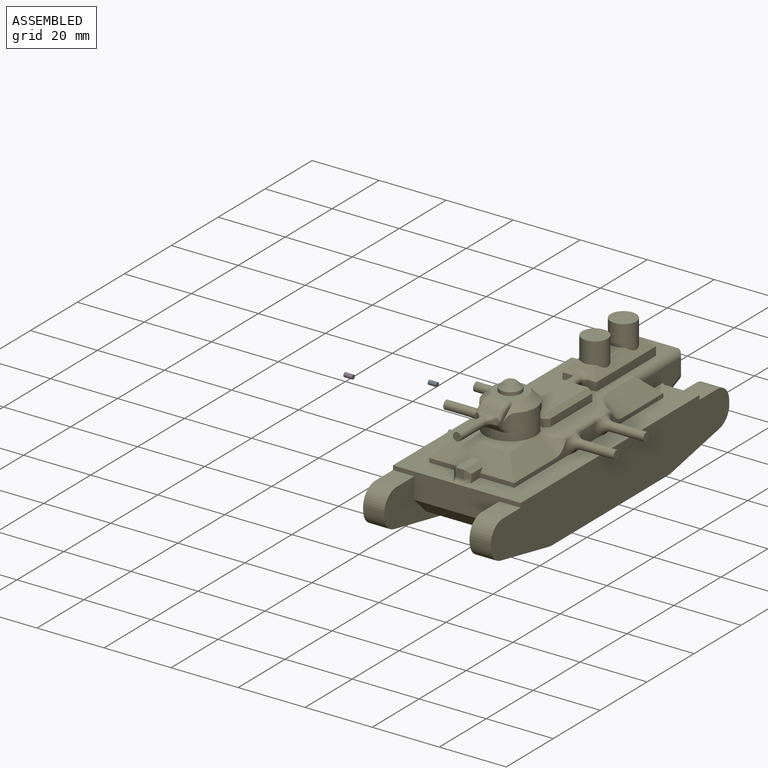
[diagram: assembled view]
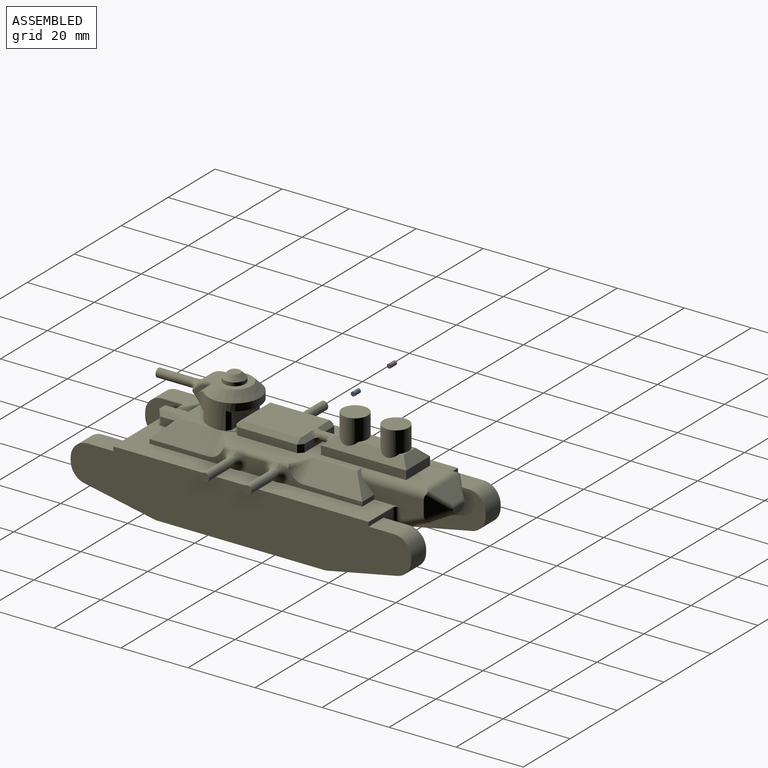
[diagram: assembled view, second angle]
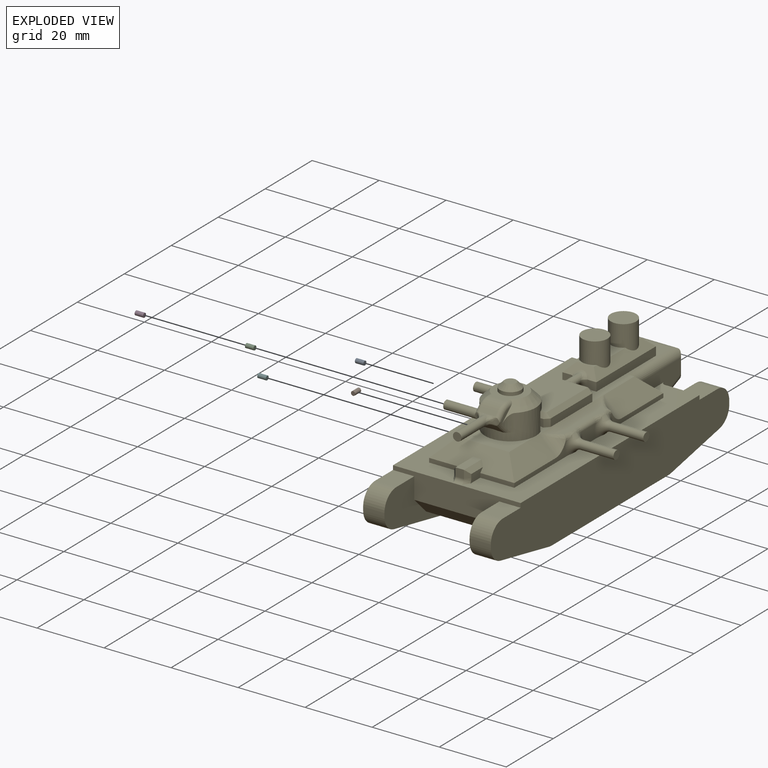
[diagram: exploded view]
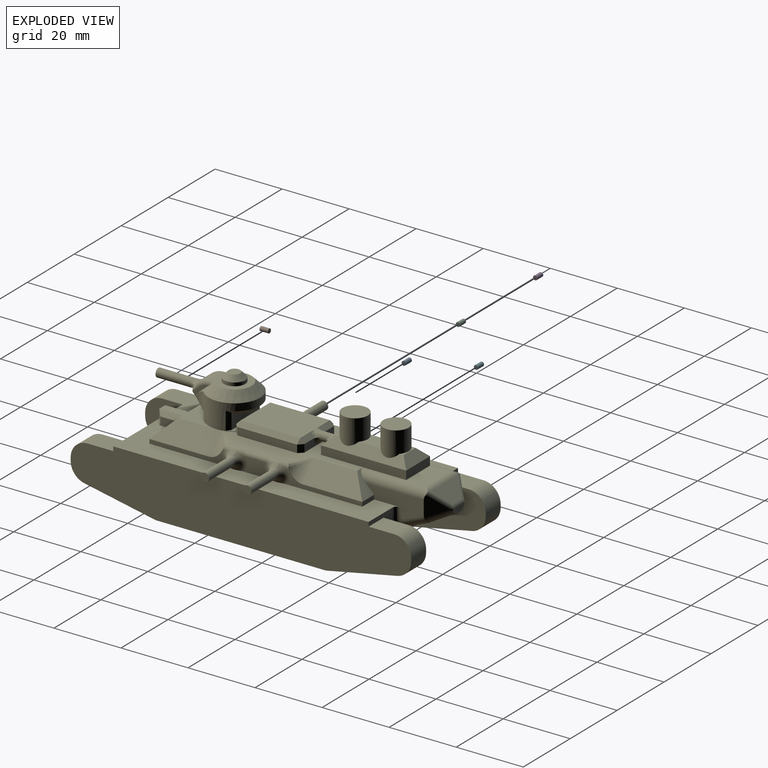
[diagram: exploded view, second angle]
ASSEMBLY  parts=6 mates=2
PART A: 3 faces, bbox 1.3x2.5x1.3 mm
  f0: cylinder r=0.64mm len=2.54mm, axis (0,1,0), area 10.1mm2, adj f1,f2
  f1: plane 1.27x1.27mm, normal (0,-1,0), area 1.3mm2, adj f0
  f2: plane 1.27x1.27mm, normal (0,1,0), area 1.3mm2, adj f0
PART B: same geometry as A
PART C: same geometry as A
PART D: same geometry as A
PART E: 224 faces, bbox 53.3x105.8x38.1 mm
  f0: bspline ~6.87x1.72mm, area 9.1mm2, adj f1,f5,f6,f152,f153,f167,f168
  f1: cylinder r=1.27mm len=5.83mm, axis (0,-1,0), area 11.6mm2, adj f0,f4,f17,f152
  f2: cylinder r=1.27mm len=5.83mm, axis (0,1,0), area 11.6mm2, adj f3,f7,f16,f151
  f3: bspline ~6.87x1.72mm, area 9.1mm2, adj f2,f151,f158,f173,f174,f206,f207
  f4: bspline ~6.87x1.72mm, area 9.1mm2, adj f1,f152,f155,f171,f172,f212,f213
  f5: bspline ~3.63x2.72mm, area 2mm2, adj f0,f152,f153,f214
  f6: cylinder r=1.27mm len=0.21mm, axis (0,-1,0), area 0mm2, adj f0,f74,f153
  f7: bspline ~6.88x1.72mm, area 9.1mm2, adj f2,f151,f156,f169,f170,f209,f210
  f8: plane 5.24x2.29mm, normal (0,1,0), area 9.6mm2, adj f10,f13,f196,f200
  f9: plane 3.97x2.54mm, normal (0,-1,0), area 7.4mm2, adj f13,f91,f97,f204
  f10: plane 5.03x1.29mm, normal (0,0.71,0.71), area 7.9mm2, adj f8,f184,f195,f200,f201
  f11: cylinder r=7.62mm len=15.24mm, axis (0,0,-1), area 202.1mm2, adj f12,f14,f30,f31,f32,f33,f112,f113
  f12: plane 6.4x2.01mm, normal (0,0,1), area 3.7mm2, adj f11,f20,f154,f180,f190,f211
  f13: plane 18.1x15.42mm, normal (0,0,1), area 127.6mm2, adj f8,f9,f21,f22,f39,f80,f89,f90
  f14: plane 14.44x2.52mm, normal (0,0,1), area 21.8mm2, adj f11,f175,f177,f179,f180
  f15: plane 22.56x4.18mm, normal (1,0,0), area 31.2mm2, adj f22,f23,f38,f156,f169,f210
  f16: plane 7.02x4.18mm, normal (1,0,0), area 23.2mm2, adj f2,f23,f169,f173
  f17: plane 7.02x4.18mm, normal (-1,0,0), area 23.2mm2, adj f1,f37,f167,f171
  f18: plane 22.56x4.18mm, normal (-1,0,0), area 31.2mm2, adj f20,f24,f37,f155,f171,f213
  f19: plane 17.82x5.12mm, normal (0.71,0,0.71), area 109.5mm2, adj f32,f33,f76,f79,f158,f205
  f20: plane 17.82x5.12mm, normal (-0.71,0,0.71), area 109.5mm2, adj f12,f18,f33,f79,f155,f211
  f21: plane 17.82x5.12mm, normal (-0.71,0,0.71), area 109.5mm2, adj f13,f74,f80,f153,f214
  f22: plane 17.82x5.12mm, normal (0.71,0,0.71), area 109.5mm2, adj f13,f15,f39,f156,f208
  f23: plane 78.42x18.73mm, normal (0,0,1), area 580.8mm2, adj f15,f16,f36,f38,f41,f43,f75,f76
  f24: plane 10.16x1.27mm, normal (0,-1,0), area 12.9mm2, adj f18,f37,f79,f142
  f25: bspline ~2.22x1.77mm, area 0.7mm2, adj f114,f115,f126
  f26: bspline ~2.22x1.77mm, area 0.7mm2, adj f113,f115,f130
  f27: bspline ~2.22x1.77mm, area 0.7mm2, adj f113,f115,f121
  f28: bspline ~2.22x1.77mm, area 0.7mm2, adj f114,f115,f125
  f29: cone r=0.64mm half-angle=45deg, axis (0,0,-1), area 31.9mm2, adj f119,f120
  f30: plane 3.7x1.97mm, normal (0,0,-1), area 1.1mm2, adj f11,f113,f118,f136
  f31: cone r=5.08mm half-angle=45deg, axis (0,0,-1), area 118mm2, adj f11,f109,f110,f111,f117,f118,f132,f133
  f32: plane 6.4x2.01mm, normal (0,0,1), area 3.7mm2, adj f11,f19,f157,f180,f185,f205
  f33: plane 15.24x11.43mm, normal (0,0,1), area 83mm2, adj f11,f19,f20,f79
  f34: plane 5.08x1.22mm, normal (0,0,1), area 2.8mm2, adj f95,f96,f97,f100
  f35: plane 6.51x5.08mm, normal (0,0,1), area 26.3mm2, adj f95,f96,f98,f100
  f36: plane 38.1x7.62mm, normal (0,1,0), area 98.8mm2, adj f23,f37,f42,f43,f45,f46,f53,f55
  f37: plane 78.42x18.73mm, normal (0,0,1), area 580.8mm2, adj f17,f18,f24,f36,f41,f42,f74,f77
  f38: plane 5.08x1.27mm, normal (0,1,0), area 6.5mm2, adj f15,f23,f39,f81
  f39: plane 7.62x5.08mm, normal (0,0.71,0.71), area 20.2mm2, adj f13,f22,f38,f81,f106
  f40: plane 66.04x25.4mm, normal (0,0,-1), area 1677.4mm2, adj f45,f53,f72,f73
  f41: plane 38.1x7.62mm, normal (0,-1,0), area 209.7mm2, adj f23,f37,f42,f43,f44,f45,f52,f53
  f42: plane 101.6x16.51mm, normal (-1,0,0), area 1498.2mm2, adj f36,f37,f41,f52,f54,f55,f56,f57
  f43: plane 101.6x16.51mm, normal (1,0,0), area 1498.2mm2, adj f23,f36,f41,f44,f46,f47,f48,f49
  f44: plane 7.62x6.35mm, normal (0,0,1), area 48.4mm2, adj f41,f43,f45,f64
  f45: plane 101.6x15.24mm, normal (-1,0,0), area 556.2mm2, adj f36,f40,f41,f44,f46,f47,f48,f49
  f46: plane 7.62x6.35mm, normal (0,0,1), area 48.4mm2, adj f36,f43,f45,f67
  f47: plane 6.35x0.92mm, normal (0,-1,0), area 5.8mm2, adj f43,f45,f64,f65
  f48: plane 20.82x6.35mm, normal (0,-0.2,-0.98), area 134.8mm2, adj f43,f45,f65,f70
  f49: plane 49.79x6.35mm, normal (0,0,-1), area 316.2mm2, adj f43,f45,f70,f71
  f50: plane 20.82x6.35mm, normal (0,0.2,-0.98), area 134.8mm2, adj f43,f45,f66,f71
  f51: plane 6.35x0.92mm, normal (0,1,0), area 5.8mm2, adj f43,f45,f66,f67
  f52: plane 7.62x6.35mm, normal (0,0,1), area 48.4mm2, adj f41,f42,f53,f63
  f53: plane 101.6x15.24mm, normal (1,0,0), area 556.2mm2, adj f36,f40,f41,f52,f54,f55,f56,f57
  f54: plane 6.35x0.91mm, normal (0,-1,0), area 5.8mm2, adj f42,f53,f62,f63
  f55: plane 7.62x6.35mm, normal (0,0,1), area 48.4mm2, adj f36,f42,f53,f60
  f56: plane 6.35x0.92mm, normal (0,1,0), area 5.9mm2, adj f42,f53,f60,f61
  f57: plane 20.61x6.35mm, normal (0,0.2,-0.98), area 133.5mm2, adj f42,f53,f61,f68
  f58: plane 49.79x6.35mm, normal (0,0,-1), area 316.2mm2, adj f42,f53,f68,f69
  f59: plane 21.04x6.35mm, normal (0,-0.19,-0.98), area 136.2mm2, adj f42,f53,f62,f69
  f60: cylinder r=5.08mm len=6.35mm, axis (-1,0,0), area 50.7mm2, adj f42,f53,f55,f56
  f61: cylinder r=5.08mm len=6.35mm, axis (-1,0,0), area 44.2mm2, adj f42,f53,f56,f57
  f62: cylinder r=5.08mm len=6.35mm, axis (-1,0,0), area 44.4mm2, adj f42,f53,f54,f59
  f63: cylinder r=5.08mm len=6.35mm, axis (-1,0,0), area 50.7mm2, adj f42,f52,f53,f54
  f64: cylinder r=5.08mm len=6.35mm, axis (1,0,0), area 50.7mm2, adj f43,f44,f45,f47
  f65: cylinder r=5.08mm len=6.35mm, axis (1,0,0), area 44.3mm2, adj f43,f45,f47,f48
  f66: cylinder r=5.08mm len=6.35mm, axis (-1,0,0), area 44.3mm2, adj f43,f45,f50,f51
  f67: cylinder r=5.08mm len=6.35mm, axis (1,0,0), area 50.7mm2, adj f43,f45,f46,f51
  f68: cylinder r=5.08mm len=6.35mm, axis (-1,0,0), area 6.4mm2, adj f42,f53,f57,f58
  f69: cylinder r=5.08mm len=6.35mm, axis (-1,0,0), area 6.3mm2, adj f42,f53,f58,f59
  f70: cylinder r=5.08mm len=6.35mm, axis (1,0,0), area 6.4mm2, adj f43,f45,f48,f49
  f71: cylinder r=5.08mm len=6.35mm, axis (-1,0,0), area 6.4mm2, adj f43,f45,f49,f50
  f72: plane 25.4x5.08mm, normal (0,-0.71,-0.71), area 182.5mm2, adj f40,f41,f45,f53
  f73: plane 25.4x5.08mm, normal (0,0.71,-0.71), area 182.5mm2, adj f36,f40,f45,f53
  f74: plane 22.56x4.18mm, normal (-1,0,0), area 31.2mm2, adj f6,f21,f37,f77,f153,f167
  f75: plane 10.16x1.27mm, normal (0,-1,0), area 12.9mm2, adj f23,f76,f79,f140
  f76: plane 22.56x4.18mm, normal (1,0,0), area 31.2mm2, adj f19,f23,f75,f158,f173,f206
  f77: plane 5.08x1.27mm, normal (0,1,0), area 6.5mm2, adj f37,f74,f80,f83
  f78: plane 10.16x5.99mm, normal (0,0,1), area 60.9mm2, adj f92,f106,f107,f108
  f79: plane 25.4x5.08mm, normal (0,-0.71,0.71), area 130.8mm2, adj f19,f20,f24,f33,f75,f140,f141,f142
  f80: plane 7.62x5.08mm, normal (0,0.71,0.71), area 20.2mm2, adj f13,f21,f77,f83,f107
  f81: plane 17.35x7.23mm, normal (1,0,0), area 73.5mm2, adj f23,f38,f39,f85,f102,f106,f216
  f82: plane 4.9x1.83mm, normal (0,1,0), area 7.2mm2, adj f103,f104,f220,f221,f222
  f83: plane 17.35x7.23mm, normal (-1,0,0), area 73.5mm2, adj f37,f77,f80,f87,f105,f107,f218
  f84: plane 15.92x1.23mm, normal (0,0,-1), area 10.5mm2, adj f36,f88,f102,f105,f215,f217
  f85: plane 6.42x4.87mm, normal (0.71,0.71,0), area 21.7mm2, adj f81,f102,f103,f106,f223
  f86: plane 11.96x3.96mm, normal (0,0.71,0.71), area 44.8mm2, adj f108,f219,f220,f221,f222,f223
  f87: plane 6.42x4.87mm, normal (-0.71,0.71,0), area 21.7mm2, adj f83,f104,f105,f107,f219
  f88: plane 12.62x10.16mm, normal (0,0.38,-0.92), area 110.8mm2, adj f84,f102,f103,f104,f105
  f89: plane 25.4x2.54mm, normal (-1,0,0), area 64.5mm2, adj f13,f90,f92,f95,f107
  f90: plane 3.97x2.54mm, normal (0,-1,0), area 7.4mm2, adj f13,f89,f97,f204
  f91: plane 25.4x2.54mm, normal (1,0,0), area 64.5mm2, adj f9,f13,f92,f96,f106
  f92: plane 10.16x2.54mm, normal (0,1,0), area 25.8mm2, adj f78,f89,f91,f94
  f93: plane 5.08x1.22mm, normal (0,0,1), area 2.8mm2, adj f94,f95,f96,f98
  f94: plane 10.16x2.54mm, normal (0,0.71,0.71), area 27.4mm2, adj f92,f93,f95,f96
  f95: plane 27.94x5.08mm, normal (-0.71,0,0.71), area 68mm2, adj f34,f35,f89,f93,f94,f97,f98,f100
  f96: plane 27.94x5.08mm, normal (0.71,0,0.71), area 68mm2, adj f34,f35,f91,f93,f94,f97,f98,f100
  f97: plane 10.16x2.57mm, normal (0,-0.71,0.71), area 21mm2, adj f9,f34,f90,f95,f96,f203,f204
  f98: cylinder r=3.81mm len=7.62mm, axis (0,0,-1), area 152mm2, adj f35,f93,f95,f96,f99
  f99: plane 7.62x7.62mm, normal (0,0,1), area 45.6mm2, adj f98
  f100: cylinder r=3.81mm len=7.62mm, axis (0,0,-1), area 152mm2, adj f34,f35,f95,f96,f101
  f101: plane 7.62x7.62mm, normal (0,0,1), area 45.6mm2, adj f100
  f102: cylinder r=2.54mm len=9.61mm, axis (0,0.92,0.38), area 32.8mm2, adj f81,f84,f85,f88,f103,f215
  f103: cylinder r=2.54mm len=7.57mm, axis (-0.68,0.68,0.28), area 23.5mm2, adj f82,f85,f88,f102,f104,f222
  f104: cylinder r=2.54mm len=7.57mm, axis (0.68,0.68,0.28), area 23.5mm2, adj f82,f87,f88,f103,f105,f220
  f105: cylinder r=2.54mm len=9.61mm, axis (0,0.92,0.38), area 32.8mm2, adj f83,f84,f87,f88,f104,f217
  f106: cylinder r=2.54mm len=20.34mm, axis (0,1,0), area 75.8mm2, adj f39,f78,f81,f85,f91,f108,f223
  f107: cylinder r=2.54mm len=20.34mm, axis (0,-1,0), area 75.8mm2, adj f78,f80,f83,f87,f89,f108,f219
  f108: cylinder r=2.54mm len=13.17mm, axis (-1,0,0), area 23.6mm2, adj f78,f86,f106,f107,f219,f223
  f109: plane 10.43x10.16mm, normal (0,0,1), area 51.7mm2, adj f31,f119,f131,f132,f139
  f110: plane 4.48x3.35mm, normal (-1,0,0), area 4.2mm2, adj f31,f132,f133,f134,f135
  f111: plane 4.48x3.35mm, normal (1,0,0), area 4.2mm2, adj f31,f136,f137,f138,f139
  f112: plane 3.7x1.97mm, normal (0,0,-1), area 1.1mm2, adj f11,f113,f117,f133
  f113: plane 6.57x3.07mm, normal (0,-0.71,-0.71), area 18.5mm2, adj f11,f26,f27,f30,f112,f121,f130,f133
  f114: plane 5.47x1.59mm, normal (0,-0.71,0.71), area 7.3mm2, adj f25,f28,f125,f126,f131,f135,f137
  f115: cylinder r=1.27mm len=12.7mm, axis (0,1,0), area 87.1mm2, adj f25,f26,f27,f28,f116,f121,f122,f123
  f116: plane 2.54x2.54mm, normal (0,-1,0), area 5.1mm2, adj f115
  f117: cylinder r=5.08mm len=5.08mm, axis (0,0,-1), area 11.3mm2, adj f11,f31,f112,f133
  f118: cylinder r=5.08mm len=5.08mm, axis (0,0,-1), area 11.3mm2, adj f11,f30,f31,f136
  f119: cylinder r=3.17mm len=6.35mm, axis (0,0,-1), area 20.3mm2, adj f29,f109
  f120: plane 3.4x3.4mm, normal (0,0,1), area 9.1mm2, adj f29
  f121: bspline ~3.03x2.54mm, area 2.5mm2, adj f27,f113,f115,f122,f133
  f122: torus R=3.81mm, axis (0,1,0), area 1mm2, adj f115,f121,f123,f133
  f123: bspline ~2.69x2.54mm, area 3.1mm2, adj f115,f122,f124,f133,f135
  f124: torus R=3.81mm, axis (0,1,0), area 1mm2, adj f115,f123,f125,f135
  f125: bspline ~3.03x2.54mm, area 2.5mm2, adj f28,f114,f115,f124,f135
  f126: bspline ~3.03x2.54mm, area 2.5mm2, adj f25,f114,f115,f127,f137
  f127: torus R=3.81mm, axis (0,1,0), area 1mm2, adj f115,f126,f128,f137
  f128: bspline ~2.69x2.54mm, area 3.1mm2, adj f115,f127,f129,f136,f137
  f129: torus R=3.81mm, axis (0,1,0), area 1mm2, adj f115,f128,f130,f136
  f130: bspline ~3.03x2.54mm, area 2.5mm2, adj f26,f113,f115,f129,f136
  f131: cylinder r=5.08mm len=4.94mm, axis (1,0,0), area 19.7mm2, adj f109,f114,f134,f138
  f132: cylinder r=1.27mm len=1.27mm, axis (0,-1,0), area 1.8mm2, adj f31,f109,f110,f134
  f133: bspline ~5x4.3mm, area 7.8mm2, adj f31,f110,f112,f113,f117,f121,f122,f123
  f134: torus R=3.81mm, axis (1,0,0), area 7.2mm2, adj f110,f131,f132,f135
  f135: cylinder r=1.27mm len=2.62mm, axis (0,-0.71,-0.71), area 3.9mm2, adj f110,f114,f123,f124,f125,f133,f134
  f136: bspline ~5x4.3mm, area 7.8mm2, adj f30,f31,f111,f113,f118,f128,f129,f130
  f137: cylinder r=1.27mm len=2.62mm, axis (0,-0.71,-0.71), area 3.9mm2, adj f111,f114,f126,f127,f128,f136,f138
  f138: torus R=3.81mm, axis (1,0,0), area 7.2mm2, adj f111,f131,f137,f139
  f139: cylinder r=1.27mm len=1.27mm, axis (0,1,0), area 1.8mm2, adj f31,f109,f111,f138
  f140: plane 5.31x2.43mm, normal (1,0,0), area 10.1mm2, adj f23,f75,f79,f145,f146,f147
  f141: plane 7.51x2.54mm, normal (0,0,1), area 19.1mm2, adj f79,f143,f145,f148
  f142: plane 5.31x2.43mm, normal (-1,0,0), area 10.1mm2, adj f24,f37,f79,f148,f149,f150
  f143: plane 2.54x2.43mm, normal (0,-1,0), area 6.2mm2, adj f141,f144,f146,f149
  f144: cylinder r=1.27mm len=2.54mm, axis (-1,0,0), area 5.1mm2, adj f41,f143,f147,f150
  f145: plane 7.51x1.27mm, normal (0.71,0,0.71), area 11.2mm2, adj f79,f140,f141,f146
  f146: plane 2.43x1.27mm, normal (0.71,-0.71,0), area 3.2mm2, adj f140,f143,f145,f147
  f147: cone r=2.54mm half-angle=45deg, axis (1,0,0), area 3.4mm2, adj f23,f140,f144,f146
  f148: plane 7.51x1.27mm, normal (-0.71,0,0.71), area 11.2mm2, adj f79,f141,f142,f149
  f149: plane 2.43x1.27mm, normal (-0.71,-0.71,0), area 3.2mm2, adj f142,f143,f148,f150
  f150: cone r=2.54mm half-angle=45deg, axis (-1,0,0), area 3.4mm2, adj f37,f142,f144,f149
  f151: plane 19.13x1.61mm, normal (0,0,1), area 21.4mm2, adj f2,f3,f7,f157,f207,f209
  f152: plane 19.13x1.61mm, normal (0,0,1), area 21.4mm2, adj f0,f1,f4,f5,f154,f212
  f153: cylinder r=5.08mm len=6.65mm, axis (0.71,0,0.71), area 20.9mm2, adj f0,f5,f6,f21,f74,f214
  f154: cylinder r=5.08mm len=26.91mm, axis (0,1,0), area 70.5mm2, adj f12,f13,f152,f183,f211,f214
  f155: cylinder r=5.08mm len=6.65mm, axis (-0.71,0,-0.71), area 20.9mm2, adj f4,f18,f20,f211,f212,f213
  f156: cylinder r=5.08mm len=6.65mm, axis (-0.71,0,0.71), area 20.9mm2, adj f7,f15,f22,f208,f209,f210
  f157: cylinder r=5.08mm len=26.91mm, axis (0,1,0), area 70.5mm2, adj f13,f32,f151,f181,f205,f208
  f158: cylinder r=5.08mm len=6.65mm, axis (0.71,0,-0.71), area 20.9mm2, adj f3,f19,f76,f205,f206,f207
  f159: plane 2.54x2.54mm, normal (1,0,0), area 5.1mm2, adj f160
  f160: cylinder r=1.27mm len=10.16mm, axis (-1,0,0), area 81.1mm2, adj f159,f173,f174
  f161: cylinder r=1.27mm len=10.16mm, axis (-1,0,0), area 81.1mm2, adj f162,f171,f172
  f162: plane 2.54x2.54mm, normal (-1,0,0), area 5.1mm2, adj f161
  f163: plane 2.54x2.54mm, normal (1,0,0), area 5.1mm2, adj f164
  f164: cylinder r=1.27mm len=10.16mm, axis (-1,0,0), area 81.1mm2, adj f163,f169,f170
  f165: cylinder r=1.27mm len=10.16mm, axis (-1,0,0), area 81.1mm2, adj f166,f167,f168
  f166: plane 2.54x2.54mm, normal (-1,0,0), area 5.1mm2, adj f165
  f167: torus R=3.81mm, axis (1,0,0), area 35.9mm2, adj f0,f17,f37,f74,f165,f168
  f168: bspline ~5.57x2.79mm, area 5.5mm2, adj f0,f165,f167
  f169: torus R=3.81mm, axis (1,0,0), area 35.9mm2, adj f7,f15,f16,f23,f164,f170
  f170: bspline ~5.57x2.79mm, area 5.5mm2, adj f7,f164,f169
  f171: torus R=3.81mm, axis (1,0,0), area 35.9mm2, adj f4,f17,f18,f37,f161,f172
  f172: bspline ~5.57x2.79mm, area 5.5mm2, adj f4,f161,f171
  f173: torus R=3.81mm, axis (1,0,0), area 35.9mm2, adj f3,f16,f23,f76,f160,f174
  f174: bspline ~5.57x2.79mm, area 5.5mm2, adj f3,f160,f173
  f175: plane 12.05x4.65mm, normal (0,1,0), area 49.9mm2, adj f14,f176,f177,f178,f179
  f176: plane 10.85x3.05mm, normal (0,0,-1), area 23.4mm2, adj f175,f178
  f177: plane 5.5x1.31mm, normal (0.58,0.81,0), area 7.4mm2, adj f11,f14,f175,f178
  f178: cone r=6.35mm half-angle=45deg, axis (0,0,1), area 28mm2, adj f11,f175,f176,f177,f179
  f179: plane 5.5x1.31mm, normal (-0.58,0.81,0), area 7.4mm2, adj f11,f14,f175,f178
  f180: plane 12.7x2.29mm, normal (0,-1,0), area 28mm2, adj f11,f12,f14,f32,f185,f189,f190
  f181: plane 17.78x2.29mm, normal (1,0,0), area 40.6mm2, adj f157,f185,f187,f188
  f182: plane 5.24x2.29mm, normal (0,1,0), area 9.6mm2, adj f13,f187,f193,f200
  f183: plane 17.78x2.29mm, normal (-1,0,0), area 40.6mm2, adj f154,f190,f194,f196
  f184: plane 17.81x12.73mm, normal (0,0,1), area 225.8mm2, adj f10,f188,f189,f193,f194,f198,f202
  f185: plane 2.29x1.27mm, normal (0.71,-0.71,0), area 4.1mm2, adj f32,f180,f181,f186
  f186: plane 1.27x1.27mm, normal (0.58,-0.58,0.58), area 1.4mm2, adj f185,f188,f189
  f187: plane 2.29x1.27mm, normal (0.71,0.71,0), area 4.1mm2, adj f13,f181,f182,f191
  f188: plane 17.78x1.27mm, normal (0.71,0,0.71), area 31.9mm2, adj f181,f184,f186,f191
  f189: plane 12.7x1.27mm, normal (0,-0.71,0.71), area 22.8mm2, adj f180,f184,f186,f192
  f190: plane 2.29x1.27mm, normal (-0.71,-0.71,0), area 4.1mm2, adj f12,f180,f183,f192
  f191: plane 1.27x1.27mm, normal (0.58,0.58,0.58), area 1.4mm2, adj f187,f188,f193
  f192: plane 1.27x1.27mm, normal (-0.58,-0.58,0.58), area 1.4mm2, adj f189,f190,f194
  f193: plane 5.03x1.29mm, normal (0,0.71,0.71), area 7.9mm2, adj f182,f184,f191,f199,f200
  f194: plane 17.78x1.27mm, normal (-0.71,0,0.71), area 31.9mm2, adj f183,f184,f192,f195
  f195: plane 1.27x1.27mm, normal (-0.58,0.58,0.58), area 1.4mm2, adj f10,f194,f196
  f196: plane 2.29x1.27mm, normal (-0.71,0.71,0), area 4.1mm2, adj f8,f13,f183,f195
  f197: cylinder r=1.27mm len=5.85mm, axis (0,-1,0), area 20.8mm2, adj f198,f199,f200,f201,f202,f203,f204
  f198: bspline ~1.43x0.96mm, area 0.6mm2, adj f184,f197,f199
  f199: bspline ~2.54x1.82mm, area 2.7mm2, adj f193,f197,f198,f200
  f200: torus R=2.54mm, axis (0,1,0), area 10.7mm2, adj f8,f10,f13,f182,f193,f197,f199,f201
  f201: bspline ~2.54x1.82mm, area 2.7mm2, adj f10,f197,f200,f202
  f202: bspline ~1.43x0.96mm, area 0.6mm2, adj f184,f197,f201
  f203: bspline ~4.83x2.66mm, area 6.7mm2, adj f97,f197,f204
  f204: torus R=2.54mm, axis (0,1,0), area 11.4mm2, adj f9,f13,f90,f97,f197,f203
  f205: bspline ~5.36x3.88mm, area 3.9mm2, adj f19,f32,f157,f158,f207
  f206: cylinder r=1.27mm len=0.21mm, axis (0,1,0), area 0mm2, adj f3,f76,f158
  f207: bspline ~3.63x2.72mm, area 2mm2, adj f3,f151,f158,f205
  f208: bspline ~5.96x4.7mm, area 3.9mm2, adj f13,f22,f156,f157,f209
  f209: bspline ~3.63x2.72mm, area 2mm2, adj f7,f151,f156,f208
  f210: cylinder r=1.27mm len=0.21mm, axis (0,1,0), area 0mm2, adj f7,f15,f156
  f211: bspline ~5.96x4.7mm, area 3.9mm2, adj f12,f20,f154,f155,f212
  f212: bspline ~3.63x2.72mm, area 2mm2, adj f4,f152,f155,f211
  f213: cylinder r=1.27mm len=0.21mm, axis (0,-1,0), area 0mm2, adj f4,f18,f155
  f214: bspline ~5.36x3.88mm, area 3.9mm2, adj f5,f13,f21,f153,f154
  f215: bspline ~4.3x3.98mm, area 6.3mm2, adj f36,f84,f102,f216
  f216: cylinder r=1.27mm len=3.42mm, axis (0,0,1), area 6.8mm2, adj f23,f36,f81,f215
  f217: bspline ~4.3x3.98mm, area 6.3mm2, adj f36,f84,f105,f218
  f218: cylinder r=1.27mm len=3.42mm, axis (0,0,-1), area 6.8mm2, adj f36,f37,f83,f217
  f219: cylinder r=1.27mm len=5.24mm, axis (0.58,0.58,-0.58), area 9.9mm2, adj f86,f87,f107,f108,f220
  f220: bspline ~2.02x1.66mm, area 0.6mm2, adj f82,f86,f104,f219,f221
  f221: cylinder r=1.27mm len=4.84mm, axis (-1,0,0), area 4.4mm2, adj f82,f86,f220,f222
  f222: bspline ~2.02x1.66mm, area 0.6mm2, adj f82,f86,f103,f221,f223
  f223: cylinder r=1.27mm len=5.24mm, axis (0.58,-0.58,0.58), area 9.9mm2, adj f85,f86,f106,f108,f222
PART F: same geometry as A
PLACE A rot(axis=(0,0,1),90deg) t=(-74.57,-9.27,25.5)mm
PLACE B rot(axis=(1,0,0),180deg) t=(-40.86,-39.51,33.58)mm
PLACE C rot(axis=(-0.71,-0.71,0),180deg) t=(-63.72,-13.85,23.42)mm
PLACE D rot(axis=(0,0,1),90deg) t=(-96.49,-13.85,23.42)mm
PLACE E t=(-40.86,-7.5,14.53)mm
PLACE F rot(axis=(0,0,-1),90deg) t=(-66.6,-8.5,13.27)mm
MATE slider B.f0 <-> E.f115  axis (0,-1,0) through (-40.86,-39.51,33.58)mm
MATE slider C.f0 <-> E.f171  axis (-1,0,0) through (-66.26,-13.85,23.42)mm
